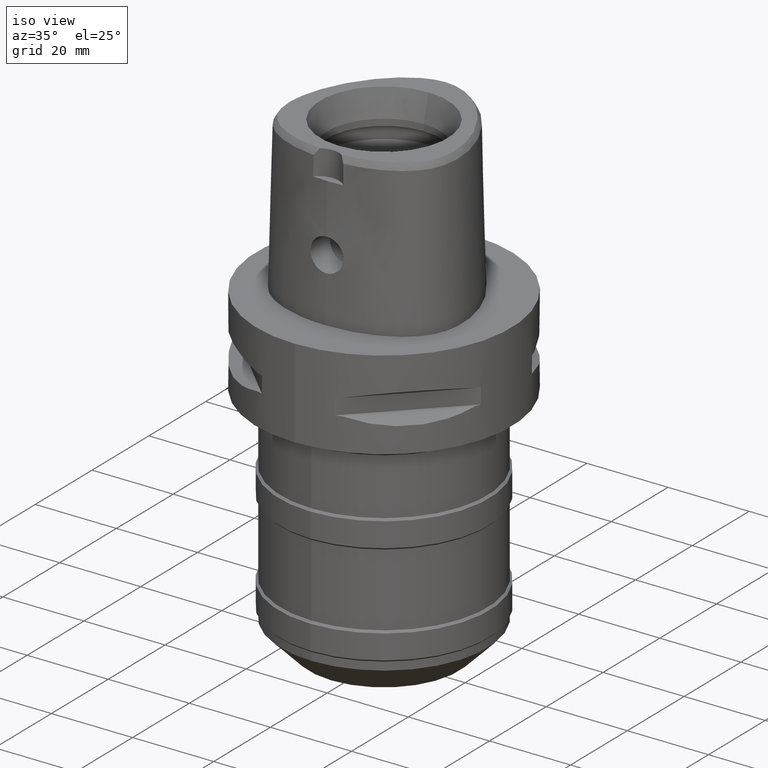
[diagram: clean part render]
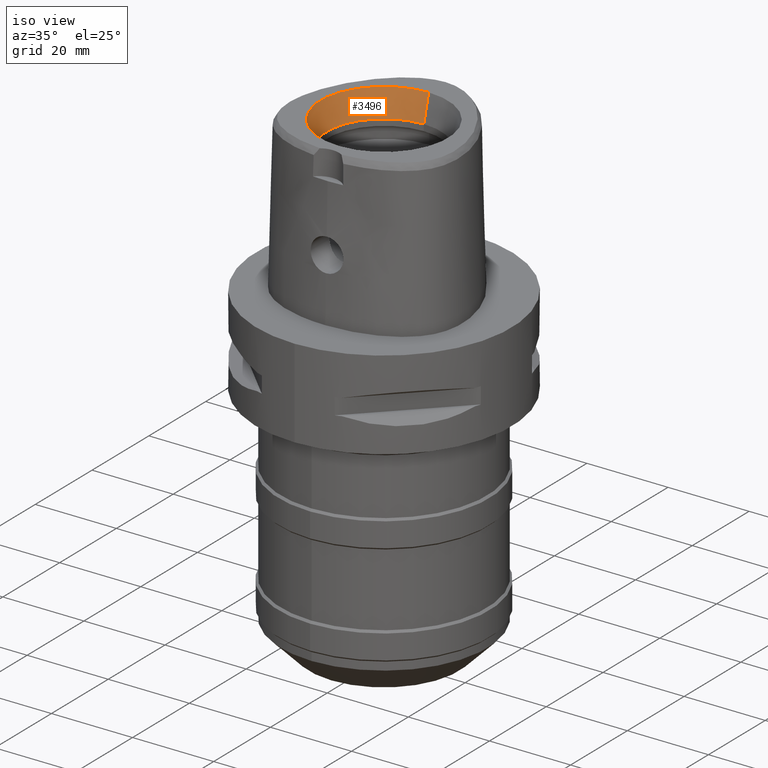
[diagram: same view with one face highlighted and labeled with its STEP entity id]
A machine part, iso view. The second image highlights one B-rep face of the part: STEP entity #3496.
In plain terms, the highlighted conical surface has half-angle 15 deg.
Its self-contained STEP definition (entity closure, byte-faithful):
#122=CARTESIAN_POINT('',(0.E0,0.E0,3.8E1));
#123=DIRECTION('',(0.E0,0.E0,1.E0));
#124=DIRECTION('',(0.E0,1.E0,0.E0));
#125=AXIS2_PLACEMENT_3D('',#122,#123,#124);
#1362=CARTESIAN_POINT('',(0.E0,0.E0,3.16E1));
#1363=DIRECTION('',(0.E0,0.E0,1.E0));
#1364=DIRECTION('',(0.E0,1.E0,0.E0));
#1365=AXIS2_PLACEMENT_3D('',#1362,#1363,#1364);
#1370=DIRECTION('',(0.E0,-2.588190451026E-1,9.659258262891E-1));
#1371=VECTOR('',#1370,6.625767554625E0);
#1372=CARTESIAN_POINT('',(0.E0,-1.4E1,3.16E1));
#1373=LINE('',#1372,#1371);
#1385=DIRECTION('',(0.E0,2.588190451026E-1,9.659258262891E-1));
#1386=VECTOR('',#1385,6.625767554625E0);
#1387=CARTESIAN_POINT('',(0.E0,1.4E1,3.16E1));
#1388=LINE('',#1387,#1386);
#1699=CARTESIAN_POINT('',(0.E0,1.571487483156E1,3.8E1));
#1700=CARTESIAN_POINT('',(0.E0,-1.571487483156E1,3.8E1));
#1701=VERTEX_POINT('',#1699);
#1702=VERTEX_POINT('',#1700);
#1879=CARTESIAN_POINT('',(0.E0,-1.4E1,3.16E1));
#1880=VERTEX_POINT('',#1879);
#1881=CARTESIAN_POINT('',(0.E0,1.4E1,3.16E1));
#1882=VERTEX_POINT('',#1881);
#3483=CARTESIAN_POINT('',(0.E0,0.E0,3.48E1));
#3484=DIRECTION('',(0.E0,0.E0,1.E0));
#3485=DIRECTION('',(0.E0,1.E0,0.E0));
#3486=AXIS2_PLACEMENT_3D('',#3483,#3484,#3485);
#3487=CONICAL_SURFACE('',#3486,1.485743741578E1,1.5E1);
#3488=ORIENTED_EDGE('',*,*,#1898,.F.);
#3490=ORIENTED_EDGE('',*,*,#3489,.F.);
#3491=ORIENTED_EDGE('',*,*,#3476,.T.);
#3493=ORIENTED_EDGE('',*,*,#3492,.T.);
#3494=EDGE_LOOP('',(#3488,#3490,#3491,#3493));
#3495=FACE_OUTER_BOUND('',#3494,.F.);
#126=CIRCLE('',#125,1.571487483156E1);
#1366=CIRCLE('',#1365,1.4E1);
#1898=EDGE_CURVE('',#1701,#1702,#126,.T.);
#3476=EDGE_CURVE('',#1882,#1880,#1366,.T.);
#3489=EDGE_CURVE('',#1882,#1701,#1388,.T.);
#3492=EDGE_CURVE('',#1880,#1702,#1373,.T.);
#3496=ADVANCED_FACE('',(#3495),#3487,.F.);